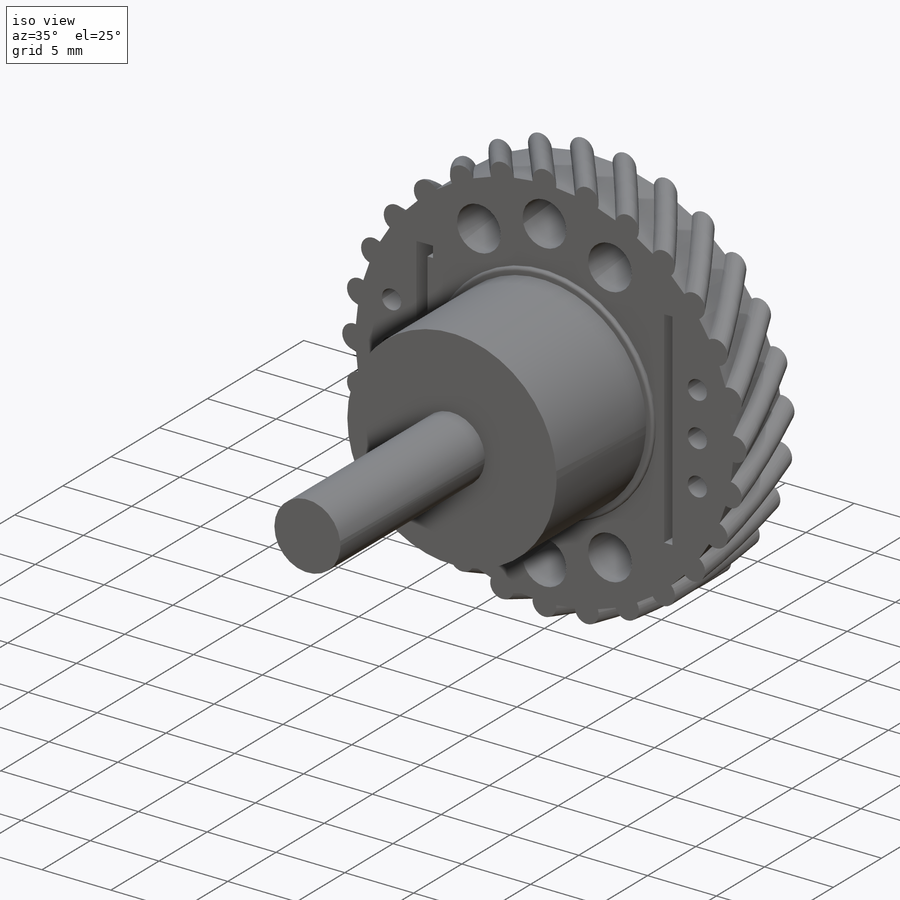
[diagram: iso view]
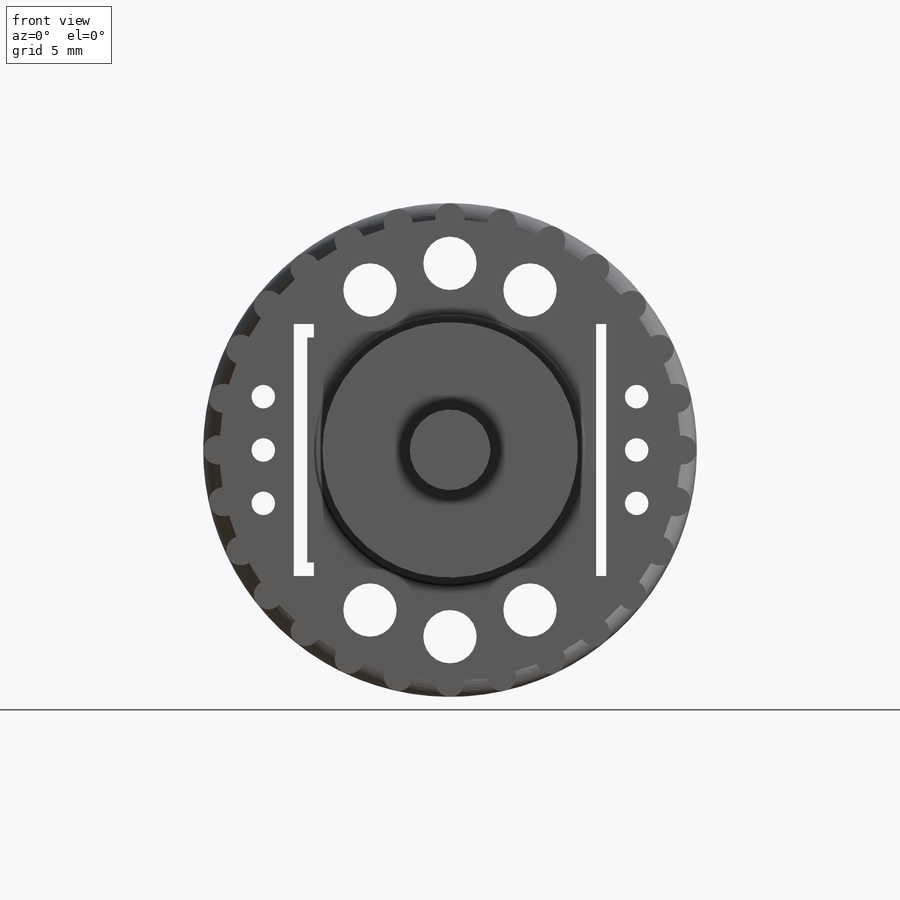
[diagram: front view]
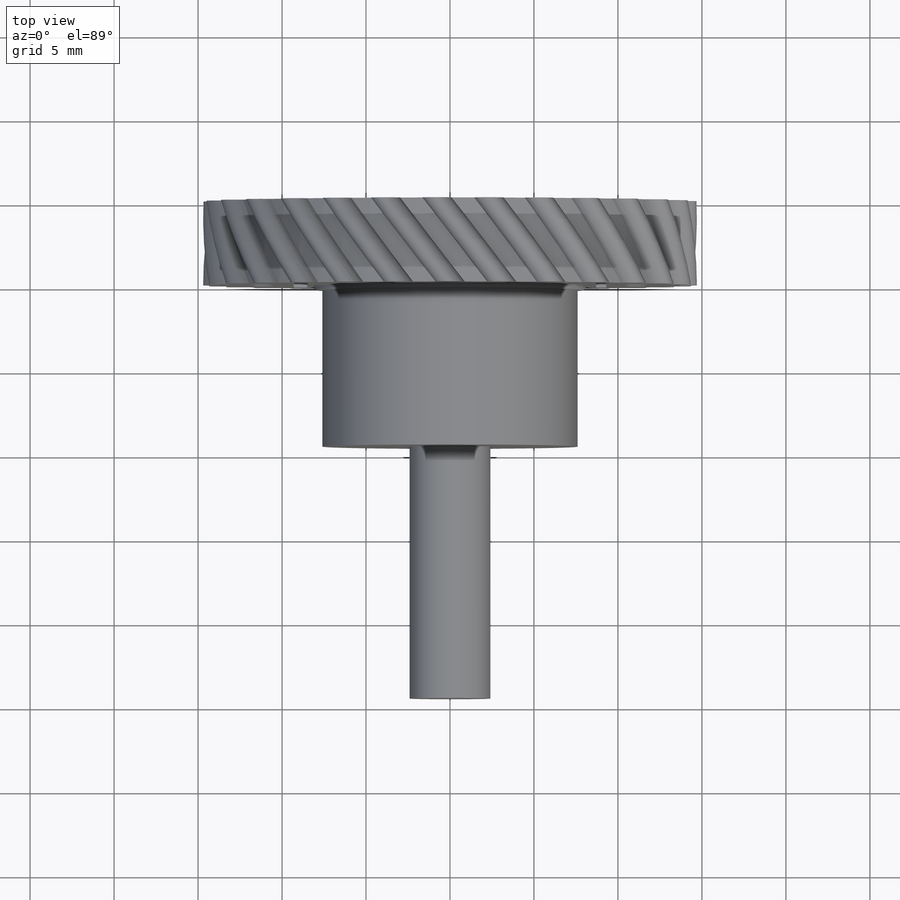
[diagram: top view]
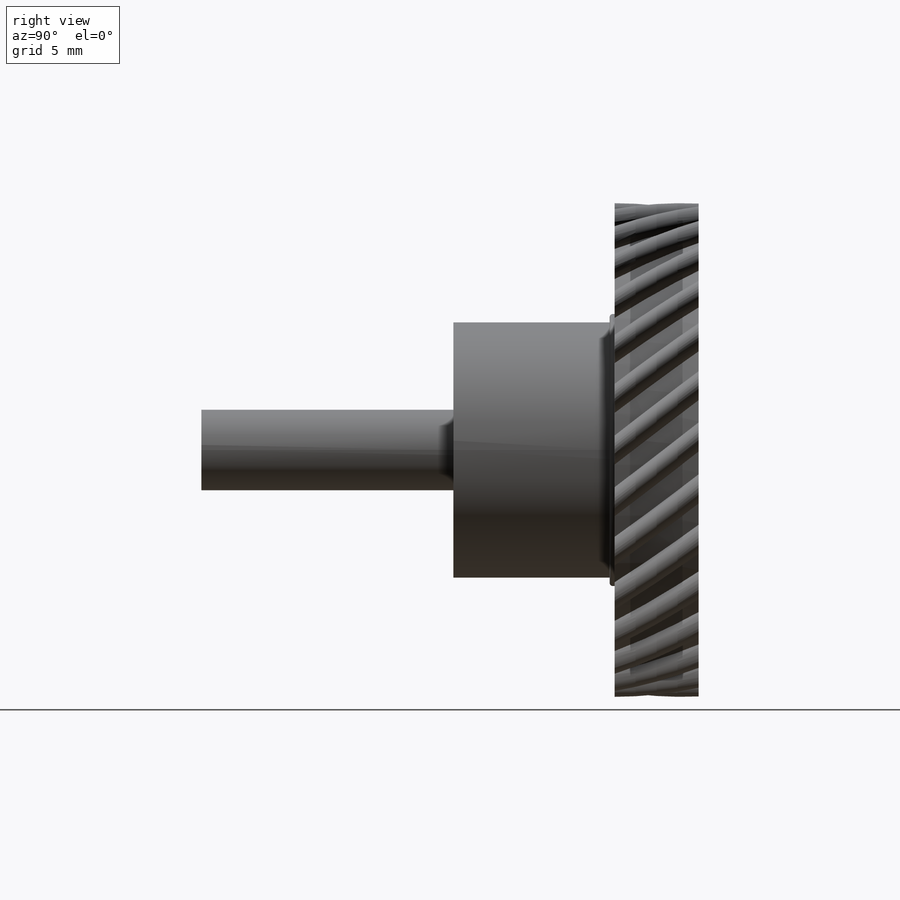
[diagram: right view]
SOLIDWORKS PART (.sldprt)
format: sldprt  version: not decoded by parser v0  size: 858,624 bytes
history: native  units: mm
features: sketch x10, extrude x5, helix x3, cut_extrude x3, sweep x2, material x1, fillet x1 (+16 scaffold rows collapsed)
feature tree (41):
  scaffold x16  (default folders/planes/origin — collapsed)
  material  "Titanium"
  sketch  "Sketch1"  dims[c1.DIA=~27.649798mm c1.D2=~27.449798mm c1.D6=0.4mm c1.D7=0.4mm c1.D1=~29.512293mm c1.D3=~6.686055mm c2.D1=0.576mm c2.D4=~27.071759mm c3.D4=95.0deg c3.D3=0.576mm c3.D5=~4.097961mm c4.D5=90.0deg c4.D1=~0.002119mm]
  extrude  "Extrude1"  Depth=5mm
  sketch  "Sketch2"  dims[D1=~27.77487mm]
  helix  "Helix/Spiral1"  Pitch=5mm
  sketch  "Sketch3"  dims[c1.D1=~27.77487mm c2.D1=~29.387221mm]
  sweep  "Sweep1"
  sketch  "Sketch4"  dims[D1=6.1mm]
  cut_extrude  "Extrude2"  [1 undecoded]
  sketch  "Sketch5"  dims[D1=7.1mm]
  extrude  "Extrude3"  Depth=8.8mm
  sketch  "Sketch9"  dims[W_L=9.3mm H_L=7.5mm D1=9.3mm D2=7.5mm D3=7.5mm D4=9.3mm D5=9.3mm D6=7.5mm D7=0.8mm LOCK_DI=0.8mm D9=0.8mm D10=0.8mm]
  cut_extrude  "Extrude6"  Depth=0.6mm
  sketch  "Sketch11"  dims[c1.D5=0.6mm c1.D6=0.8mm c2.D5=1.5875mm c2.D1=0.6mm c2.D2=0.6mm c3.D1=1.2mm c3.D2=1.2mm c3.D3=0.6mm c3.D4=0.6mm c3.D5=1.8125mm]
  cut_extrude  "Extrude8"  Depth=0 ModelUUID=0 UUID=0
  helix  "FaceIDTag-110"  Pitch=110000mm faceID=110000mm
  sweep  "cosFaceIDTag"  faceID=0mm
  helix  "FaceIDTag-123"  Pitch=123000mm faceID=123000mm
  sketch  "Sketch14"  dims[D1=7.9mm]
  extrude  "Extrude9"  Depth=0.5mm
  sketch  "Sketch15"  dims[D1=7.9mm]
  extrude  "Extrude10"  Depth=0.8mm
  sketch  "Sketch16"  dims[D1=3.175mm]
  extrude  "Extrude11"  Depth=15mm
  fillet  "Fillet1"  Radius=0.2mm SIZE=0.576mm MIN_DIA=2.1225mm LOCK=6mm LOCK_H=3mm LOCK_DIA=0.6mm
decode coverage: 22 of 24 modeling features carry decoded parameters
note: ~ marks probable driven/reference dimensions
note: 1 parameter value undecoded
note: suppression state not decoded; provenance and decode notes live in map.json
